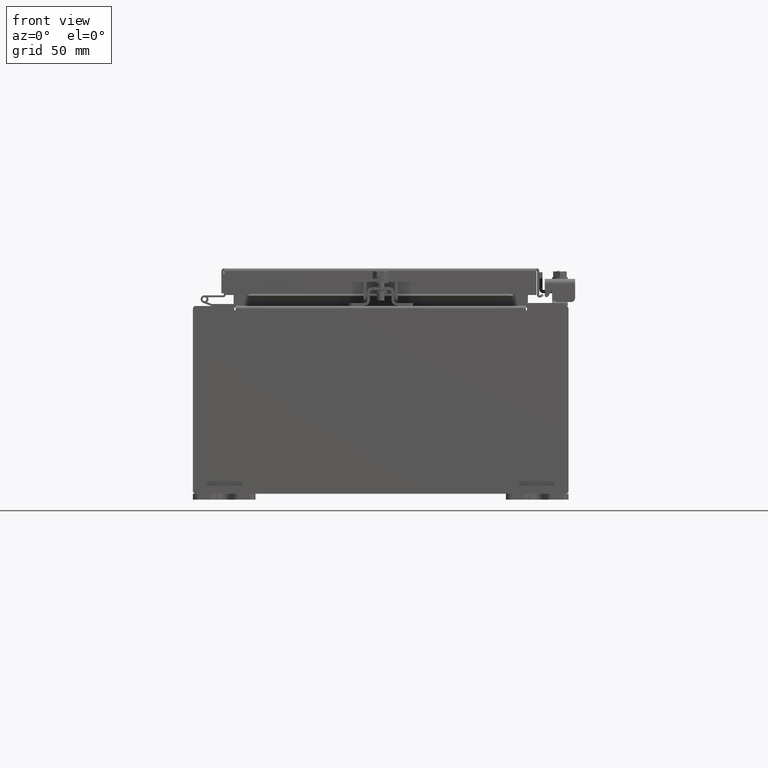
[diagram: clean part render]
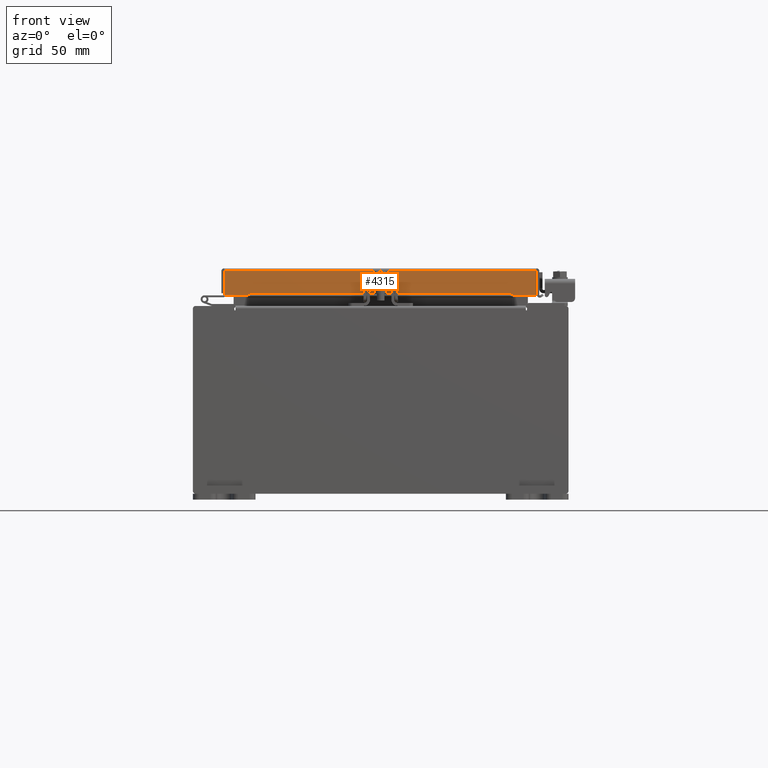
[diagram: same view with one face highlighted and labeled with its STEP entity id]
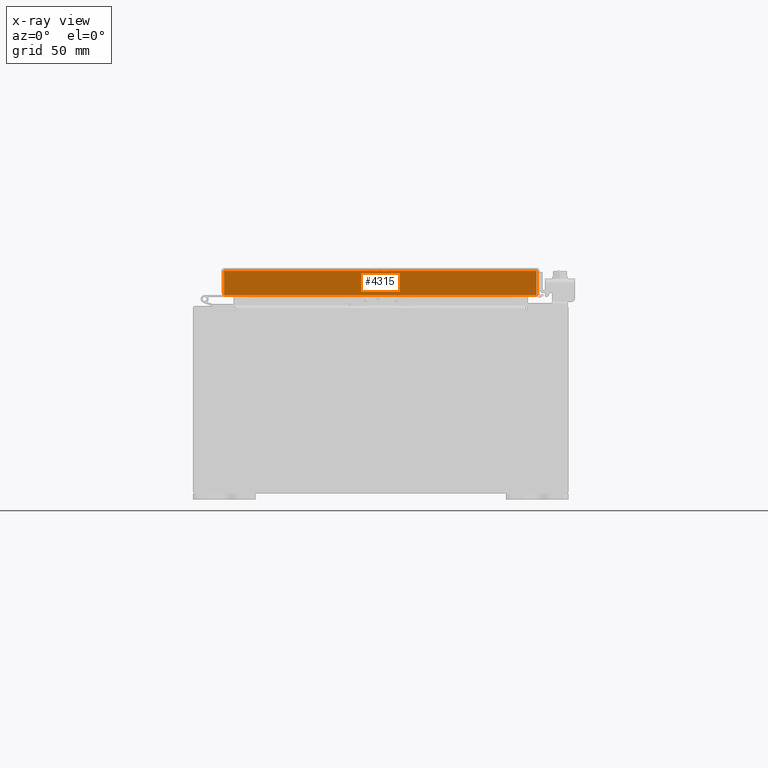
[diagram: x-ray of the same camera — body ghosted, the highlighted face saturated]
A machine part, front view. The second image highlights one B-rep face of the part: STEP entity #4315.
The next image is the same camera in x-ray: the body ghosted, the highlighted face saturated — about 0% of this face is hidden behind the body in this view.
In plain terms, the highlighted planar face has unit normal (-0, 1, -0).
Its self-contained STEP definition (entity closure, byte-faithful):
#1322 = VERTEX_POINT ( 'NONE', #25008 ) ;
#1499 = ORIENTED_EDGE ( 'NONE', *, *, #3537, .T. ) ;
#2103 = CARTESIAN_POINT ( 'NONE',  ( -4.989157864376269700, -7.094000000000000300, 2.025795506403870800E-014 ) ) ;
#2325 = CARTESIAN_POINT ( 'NONE',  ( 4.989157864376268000, -7.094000000000000300, -0.08770000000000007000 ) ) ;
#2780 = LINE ( 'NONE', #6328, #6840 ) ;
#3048 = CARTESIAN_POINT ( 'NONE',  ( 5.077999999999998500, -7.094000000000000300, -0.08770000000000007000 ) ) ;
#3537 = EDGE_CURVE ( 'NONE', #1322, #17560, #22729, .T. ) ;
#4315 = ADVANCED_FACE ( 'NONE', ( #16998 ), #20634, .F. ) ;
#4336 = ORIENTED_EDGE ( 'NONE', *, *, #16035, .F. ) ;
#4360 = LINE ( 'NONE', #6979, #25144 ) ;
#6009 = EDGE_LOOP ( 'NONE', ( #21152, #1499, #15437, #4336, #20190, #10098 ) ) ;
#6328 = CARTESIAN_POINT ( 'NONE',  ( 5.077999999999998500, -7.094000000000002100, -0.8499999999999996400 ) ) ;
#6344 = VECTOR ( 'NONE', #6417, 39.37007874015748100 ) ;
#6407 = DIRECTION ( 'NONE',  ( -1.000000000000000000, -4.379057701015054300E-047, 1.210448599004449200E-016 ) ) ;
#6417 = DIRECTION ( 'NONE',  ( -0.0000000000000000000, -2.818880942772360100E-015, -1.000000000000000000 ) ) ;
#6840 = VECTOR ( 'NONE', #12403, 39.37007874015748100 ) ;
#6901 = CARTESIAN_POINT ( 'NONE',  ( -4.989157864376269700, -7.094000000000002100, -0.8499999999999984200 ) ) ;
#6979 = CARTESIAN_POINT ( 'NONE',  ( 4.239157864376267100, -7.094000000000000300, -0.8499999999999998700 ) ) ;
#8466 = CARTESIAN_POINT ( 'NONE',  ( 4.989157864376268000, -7.094000000000000300, -0.07469999999999978000 ) ) ;
#8538 = CARTESIAN_POINT ( 'NONE',  ( 5.077999999999998500, -7.094000000000002100, -0.8499999999999996400 ) ) ;
#9091 = VECTOR ( 'NONE', #19114, 39.37007874015748100 ) ;
#10098 = ORIENTED_EDGE ( 'NONE', *, *, #13170, .F. ) ;
#10447 = VERTEX_POINT ( 'NONE', #2325 ) ;
#12403 = DIRECTION ( 'NONE',  ( -1.000000000000000000, -4.379057701015054300E-047, 1.210448599004449200E-016 ) ) ;
#12708 = DIRECTION ( 'NONE',  ( 0.0000000000000000000, 2.818880942772360100E-015, 1.000000000000000000 ) ) ;
#13058 = DIRECTION ( 'NONE',  ( -1.000000000000000000, 0.0000000000000000000, 0.0000000000000000000 ) ) ;
#13170 = EDGE_CURVE ( 'NONE', #10447, #17441, #17679, .T. ) ;
#13499 = VERTEX_POINT ( 'NONE', #17483 ) ;
#14558 = CARTESIAN_POINT ( 'NONE',  ( 4.989157864376268000, -7.094000000000002100, -0.8499999999999996400 ) ) ;
#15437 = ORIENTED_EDGE ( 'NONE', *, *, #22200, .F. ) ;
#15519 = VERTEX_POINT ( 'NONE', #23139 ) ;
#16035 = EDGE_CURVE ( 'NONE', #13499, #15519, #4360, .T. ) ;
#16047 = EDGE_CURVE ( 'NONE', #1322, #10447, #21081, .T. ) ;
#16320 = DIRECTION ( 'NONE',  ( 0.0000000000000000000, -2.818880942772360100E-015, -1.000000000000000000 ) ) ;
#16626 = AXIS2_PLACEMENT_3D ( 'NONE', #20725, #24750, #12708 ) ;
#16998 = FACE_OUTER_BOUND ( 'NONE', #6009, .T. ) ;
#17343 = VECTOR ( 'NONE', #16320, 39.37007874015748100 ) ;
#17441 = VERTEX_POINT ( 'NONE', #14558 ) ;
#17483 = CARTESIAN_POINT ( 'NONE',  ( 4.239157864376267100, -7.094000000000000300, -0.8499999999999998700 ) ) ;
#17560 = VERTEX_POINT ( 'NONE', #6901 ) ;
#17679 = LINE ( 'NONE', #8466, #6344 ) ;
#19114 = DIRECTION ( 'NONE',  ( 1.000000000000000000, 3.412110487939144700E-031, -9.300620212429628900E-046 ) ) ;
#19956 = LINE ( 'NONE', #8538, #24052 ) ;
#20190 = ORIENTED_EDGE ( 'NONE', *, *, #24890, .F. ) ;
#20634 = PLANE ( 'NONE',  #16626 ) ;
#20725 = CARTESIAN_POINT ( 'NONE',  ( 2.420551180144029300E-030, -7.094000000000000300, 2.025795506403870800E-014 ) ) ;
#21081 = LINE ( 'NONE', #3048, #9091 ) ;
#21152 = ORIENTED_EDGE ( 'NONE', *, *, #16047, .F. ) ;
#22200 = EDGE_CURVE ( 'NONE', #15519, #17560, #2780, .T. ) ;
#22729 = LINE ( 'NONE', #2103, #17343 ) ;
#23139 = CARTESIAN_POINT ( 'NONE',  ( -4.239157864376269700, -7.094000000000000300, -0.8499999999999998700 ) ) ;
#24052 = VECTOR ( 'NONE', #6407, 39.37007874015748100 ) ;
#24750 = DIRECTION ( 'NONE',  ( -3.412110487939144300E-031, 1.000000000000000000, -2.818880942772360100E-015 ) ) ;
#24890 = EDGE_CURVE ( 'NONE', #17441, #13499, #19956, .T. ) ;
#25008 = CARTESIAN_POINT ( 'NONE',  ( -4.989157864376269700, -7.094000000000000300, -0.08770000000000007000 ) ) ;
#25144 = VECTOR ( 'NONE', #13058, 39.37007874015748100 ) ;